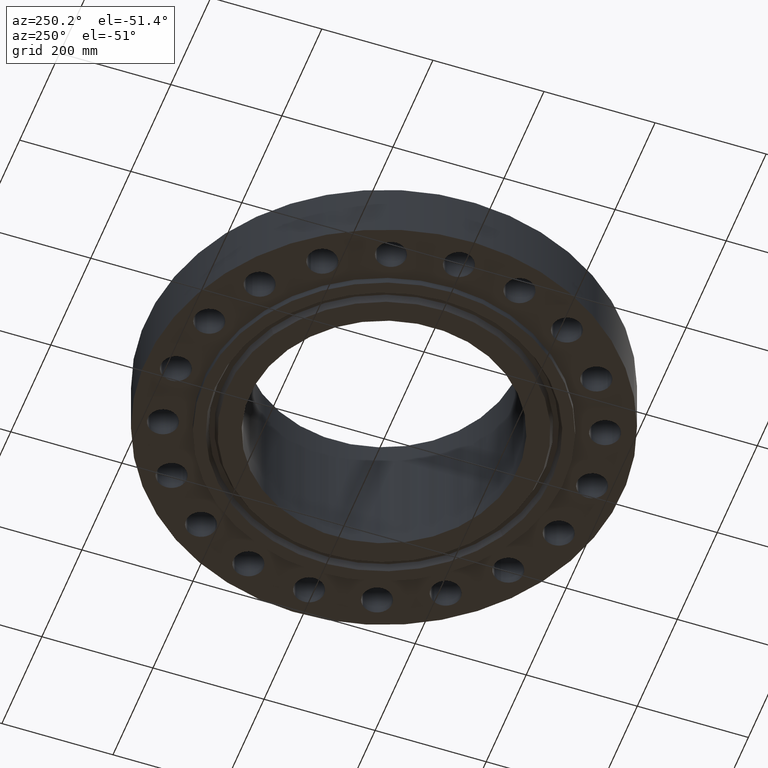
[diagram: clean part render]
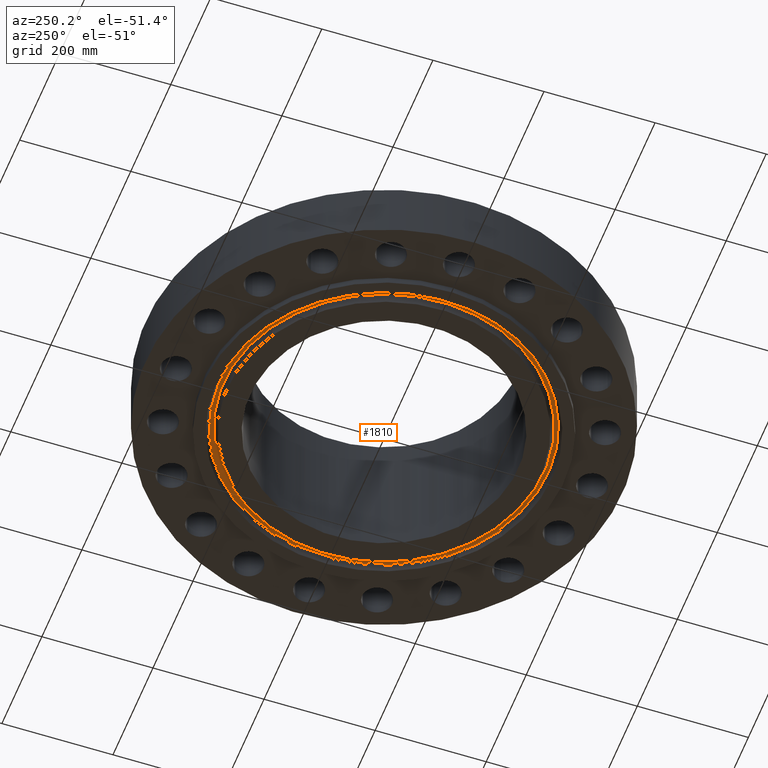
[diagram: same view with one face highlighted and labeled with its STEP entity id]
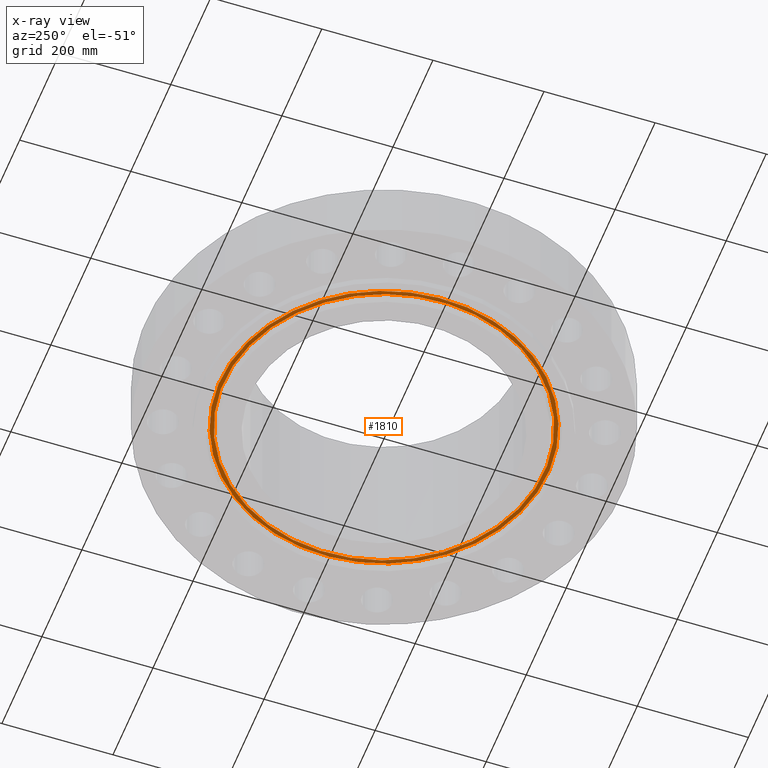
[diagram: x-ray of the same camera — body ghosted, the highlighted face saturated]
A machine part, auxiliary view. The second image highlights one B-rep face of the part: STEP entity #1810.
The next image is the same camera in x-ray: the body ghosted, the highlighted face saturated — about 0% of this face is hidden behind the body in this view.
In plain terms, the highlighted planar face has unit normal (0, 0, -1).
Its self-contained STEP definition (entity closure, byte-faithful):
#484=AXIS2_PLACEMENT_3D('Plane Axis2P3D',#481,#482,#483) ;
#1732=AXIS2_PLACEMENT_3D('Circle Axis2P3D',#1730,#1731,$) ;
#1778=AXIS2_PLACEMENT_3D('Circle Axis2P3D',#1776,#1777,$) ;
#1794=AXIS2_PLACEMENT_3D('Circle Axis2P3D',#1792,#1793,$) ;
#1803=AXIS2_PLACEMENT_3D('Circle Axis2P3D',#1801,#1802,$) ;
#481=CARTESIAN_POINT('Axis2P3D Location',(0.,12.7500000001,0.)) ;
#1727=CARTESIAN_POINT('Vertex',(-5.57909644433,10.2124675396,-3.58418456769E-016)) ;
#1730=CARTESIAN_POINT('Axis2P3D Location',(0.,0.,-3.58418456769E-016)) ;
#1734=CARTESIAN_POINT('Vertex',(5.57909644433,-10.2124675396,-3.58418456769E-016)) ;
#1776=CARTESIAN_POINT('Axis2P3D Location',(0.,0.,-3.58418456769E-016)) ;
#1792=CARTESIAN_POINT('Axis2P3D Location',(0.,0.,0.)) ;
#1796=CARTESIAN_POINT('Vertex',(5.44769094361,-9.97193138396,5.76966296262E-016)) ;
#1798=CARTESIAN_POINT('Vertex',(-5.44769094361,9.97193138396,5.76966296262E-016)) ;
#1801=CARTESIAN_POINT('Axis2P3D Location',(0.,0.,0.)) ;
#482=DIRECTION('Axis2P3D Direction',(0.,0.,-0.0393700787402)) ;
#483=DIRECTION('Axis2P3D XDirection',(0.0393700787402,0.,0.)) ;
#1731=DIRECTION('Axis2P3D Direction',(0.,0.,0.0393700787402)) ;
#1777=DIRECTION('Axis2P3D Direction',(0.,0.,0.0393700787402)) ;
#1793=DIRECTION('Axis2P3D Direction',(0.,0.,-0.0393700787402)) ;
#1802=DIRECTION('Axis2P3D Direction',(0.,0.,-0.0393700787402)) ;
#1789=ORIENTED_EDGE('',*,*,#1736,.F.) ;
#1790=ORIENTED_EDGE('',*,*,#1780,.F.) ;
#1807=ORIENTED_EDGE('',*,*,#1800,.T.) ;
#1808=ORIENTED_EDGE('',*,*,#1805,.T.) ;
#1809=FACE_BOUND('',#1806,.T.) ;
#1810=ADVANCED_FACE('PartBody',(#1791,#1809),#485,.T.) ;
#1733=CIRCLE('generated circle',#1732,11.6370447444) ;
#1779=CIRCLE('generated circle',#1778,11.6370447444) ;
#1795=CIRCLE('generated circle',#1794,11.3629552557) ;
#1804=CIRCLE('generated circle',#1803,11.3629552557) ;
#1736=EDGE_CURVE('',#1728,#1735,#1733,.T.) ;
#1780=EDGE_CURVE('',#1735,#1728,#1779,.T.) ;
#1800=EDGE_CURVE('',#1797,#1799,#1795,.F.) ;
#1805=EDGE_CURVE('',#1799,#1797,#1804,.F.) ;
#1788=EDGE_LOOP('',(#1789,#1790)) ;
#1806=EDGE_LOOP('',(#1807,#1808)) ;
#1791=FACE_OUTER_BOUND('',#1788,.T.) ;
#485=PLANE('',#484) ;
#1728=VERTEX_POINT('',#1727) ;
#1735=VERTEX_POINT('',#1734) ;
#1797=VERTEX_POINT('',#1796) ;
#1799=VERTEX_POINT('',#1798) ;